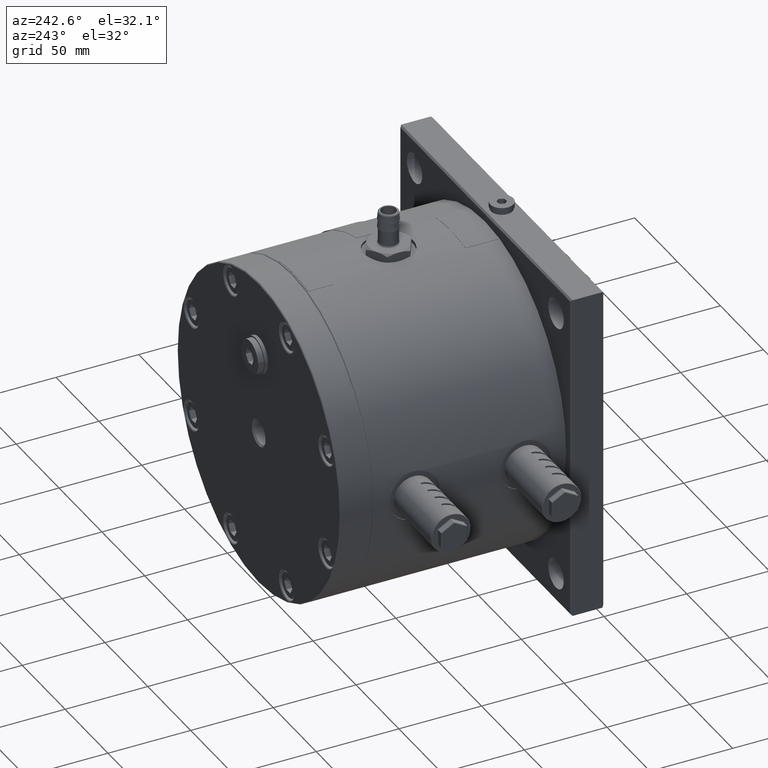
[diagram: clean part render]
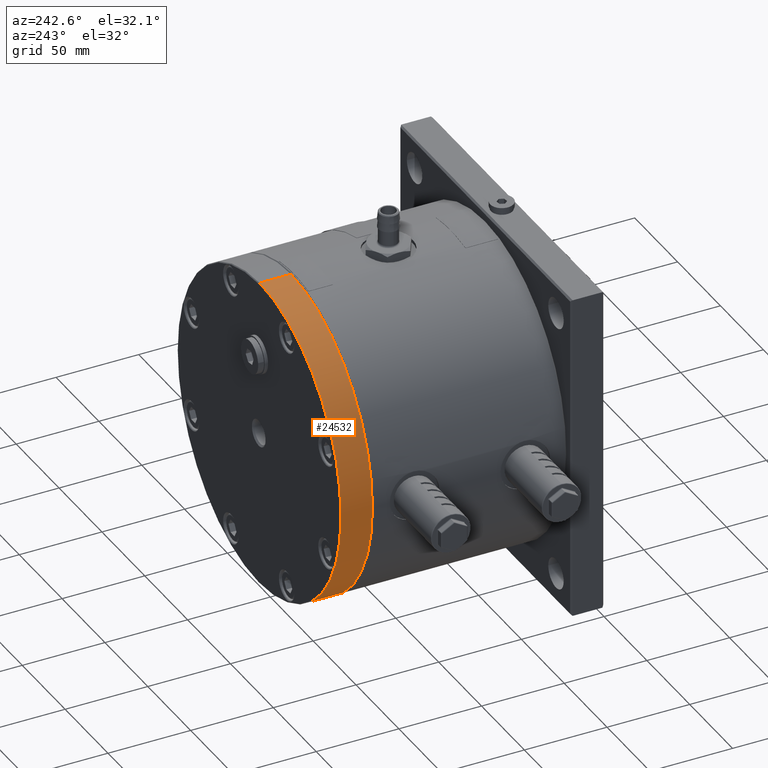
[diagram: same view with one face highlighted and labeled with its STEP entity id]
A machine part, auxiliary view. The second image highlights one B-rep face of the part: STEP entity #24532.
In plain terms, the highlighted cylindrical surface (partial cylindrical patch) has radius 95 mm, axis along (0, -1, 0).
Its self-contained STEP definition (entity closure, byte-faithful):
#1281 = AXIS2_PLACEMENT_3D ( 'NONE', #48818, #53716, #14510 ) ;
#3361 = DIRECTION ( 'NONE',  ( 0.0000000000000000000, 0.0000000000000000000, 1.000000000000000000 ) ) ;
#3427 = LINE ( 'NONE', #17019, #22662 ) ;
#3737 = EDGE_LOOP ( 'NONE', ( #38486, #33898, #41822, #48242 ) ) ;
#10714 = CYLINDRICAL_SURFACE ( 'NONE', #1281, 95.00000000000000000 ) ;
#12519 = EDGE_CURVE ( 'NONE', #39797, #32920, #39111, .T. ) ;
#12912 = CARTESIAN_POINT ( 'NONE',  ( -1.826548847175026300E-013, 156.5000000000000000, 94.99999999999997200 ) ) ;
#14510 = DIRECTION ( 'NONE',  ( 0.0000000000000000000, 0.0000000000000000000, -1.000000000000000000 ) ) ;
#15892 = CARTESIAN_POINT ( 'NONE',  ( -1.942890293094025000E-013, 156.5000000000000000, -95.00000000000002800 ) ) ;
#17019 = CARTESIAN_POINT ( 'NONE',  ( -1.942890293094025000E-013, 157.0000000000000000, -95.00000000000002800 ) ) ;
#17190 = CARTESIAN_POINT ( 'NONE',  ( -1.826548847175026300E-013, 137.5000000000000000, 94.99999999999997200 ) ) ;
#22164 = DIRECTION ( 'NONE',  ( 0.0000000000000000000, 0.0000000000000000000, 1.000000000000000000 ) ) ;
#22662 = VECTOR ( 'NONE', #31797, 1000.000000000000000 ) ;
#24532 = ADVANCED_FACE ( 'NONE', ( #55954 ), #10714, .T. ) ;
#24564 = VECTOR ( 'NONE', #62739, 1000.000000000000000 ) ;
#24617 = EDGE_CURVE ( 'NONE', #39797, #59260, #37594, .T. ) ;
#27070 = DIRECTION ( 'NONE',  ( -0.0000000000000000000, -1.000000000000000000, -0.0000000000000000000 ) ) ;
#28233 = AXIS2_PLACEMENT_3D ( 'NONE', #32537, #42378, #3361 ) ;
#28438 = CARTESIAN_POINT ( 'NONE',  ( -1.826548847175026300E-013, 157.0000000000000000, 94.99999999999997200 ) ) ;
#31797 = DIRECTION ( 'NONE',  ( 0.0000000000000000000, -1.000000000000000000, 0.0000000000000000000 ) ) ;
#32537 = CARTESIAN_POINT ( 'NONE',  ( -1.942890293094025000E-013, 137.5000000000000000, -2.775557561562889800E-014 ) ) ;
#32920 = VERTEX_POINT ( 'NONE', #15892 ) ;
#33898 = ORIENTED_EDGE ( 'NONE', *, *, #12519, .T. ) ;
#37594 = LINE ( 'NONE', #28438, #24564 ) ;
#38486 = ORIENTED_EDGE ( 'NONE', *, *, #24617, .F. ) ;
#39111 = CIRCLE ( 'NONE', #62403, 95.00000000000000000 ) ;
#39797 = VERTEX_POINT ( 'NONE', #12912 ) ;
#41822 = ORIENTED_EDGE ( 'NONE', *, *, #56853, .T. ) ;
#42378 = DIRECTION ( 'NONE',  ( 0.0000000000000000000, 1.000000000000000000, 0.0000000000000000000 ) ) ;
#46329 = CARTESIAN_POINT ( 'NONE',  ( -1.942890293094025000E-013, 156.5000000000000000, -2.775557561562889800E-014 ) ) ;
#48242 = ORIENTED_EDGE ( 'NONE', *, *, #55530, .T. ) ;
#48818 = CARTESIAN_POINT ( 'NONE',  ( -1.942890293094025000E-013, 157.0000000000000000, -2.775557561562889800E-014 ) ) ;
#53716 = DIRECTION ( 'NONE',  ( 0.0000000000000000000, -1.000000000000000000, 0.0000000000000000000 ) ) ;
#55530 = EDGE_CURVE ( 'NONE', #59563, #59260, #58005, .T. ) ;
#55954 = FACE_OUTER_BOUND ( 'NONE', #3737, .T. ) ;
#56853 = EDGE_CURVE ( 'NONE', #32920, #59563, #3427, .T. ) ;
#58005 = CIRCLE ( 'NONE', #28233, 95.00000000000000000 ) ;
#58477 = CARTESIAN_POINT ( 'NONE',  ( -1.942890293094025000E-013, 137.5000000000000000, -95.00000000000002800 ) ) ;
#59260 = VERTEX_POINT ( 'NONE', #17190 ) ;
#59563 = VERTEX_POINT ( 'NONE', #58477 ) ;
#62403 = AXIS2_PLACEMENT_3D ( 'NONE', #46329, #27070, #22164 ) ;
#62739 = DIRECTION ( 'NONE',  ( 0.0000000000000000000, -1.000000000000000000, 0.0000000000000000000 ) ) ;